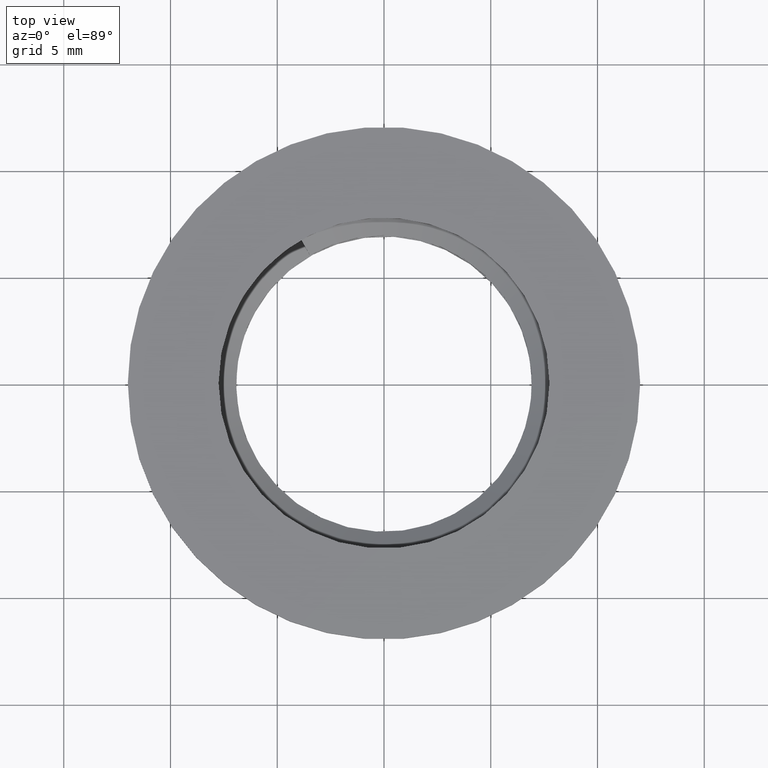
[diagram: clean part render]
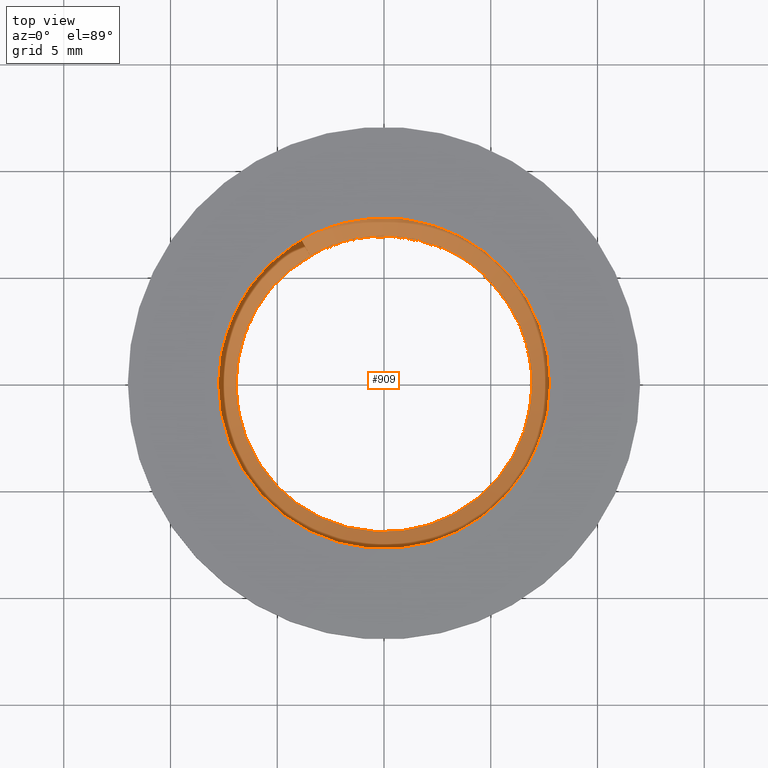
[diagram: same view with one face highlighted and labeled with its STEP entity id]
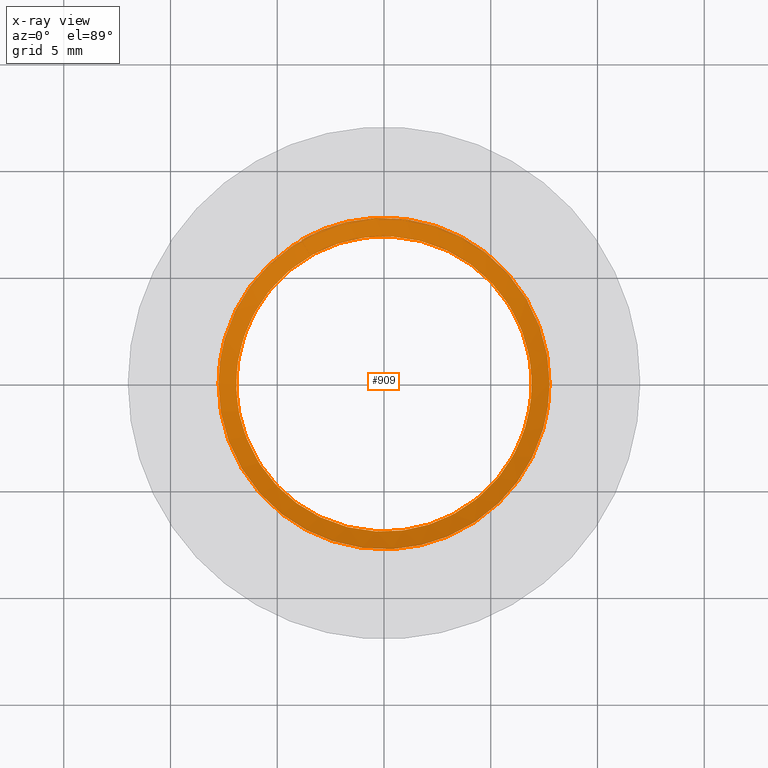
[diagram: x-ray of the same camera — body ghosted, the highlighted face saturated]
A machine part, top view. The second image highlights one B-rep face of the part: STEP entity #909.
The next image is the same camera in x-ray: the body ghosted, the highlighted face saturated — about 0% of this face is hidden behind the body in this view.
In plain terms, the highlighted face is a freeform B-spline surface patch.
Its self-contained STEP definition (entity closure, byte-faithful):
#1 = CARTESIAN_POINT ( 'NONE',  ( -3.213518103385607700, 7.758118988125000100, 1.785937495882736800 ) ) ;
#2 = CARTESIAN_POINT ( 'NONE',  ( -7.758118988125000100, 3.213518103385609100, 1.973437495882736500 ) ) ;
#3 = CARTESIAN_POINT ( 'NONE',  ( -5.485818545755305900, -5.485818545755304100, 2.254687495882736300 ) ) ;
#4 = CARTESIAN_POINT ( 'NONE',  ( 7.758118988125000100, 3.213518103385608200, 1.410937495882736500 ) ) ;
#5 = CARTESIAN_POINT ( 'NONE',  ( 7.758118988125000100, 0.0000000000000000000, 2.817187495882736800 ) ) ;
#6 = CARTESIAN_POINT ( 'NONE',  ( 7.758118988125000100, 3.213518103385608200, 2.910937495882737200 ) ) ;
#7 = CARTESIAN_POINT ( 'NONE',  ( -1.425143337931737600E-015, -7.758118988125000100, 2.442187495882736300 ) ) ;
#8 = CARTESIAN_POINT ( 'NONE',  ( 5.485818545755303300, -5.485818545755305900, 2.629687495882736800 ) ) ;
#9 = CARTESIAN_POINT ( 'NONE',  ( -3.213518103385607700, 7.758118988125000100, 3.285937495882736800 ) ) ;
#10 = CARTESIAN_POINT ( 'NONE',  ( 5.485818545755305000, 5.485818545755305000, 1.504687495882736100 ) ) ;
#11 = CARTESIAN_POINT ( 'NONE',  ( -5.485818545755304100, 5.485818545755305000, 1.879687495882736300 ) ) ;
#12 = CARTESIAN_POINT ( 'NONE',  ( -3.213518103385612600, -7.758118988124998300, 2.348437495882735900 ) ) ;
#13 = CARTESIAN_POINT ( 'NONE',  ( -7.758118988125001000, -3.213518103385606800, 2.160937495882736300 ) ) ;
#14 = CARTESIAN_POINT ( 'NONE',  ( 4.750477793105792600E-016, 7.758118988125000100, 1.692187495882736300 ) ) ;
#15 = CARTESIAN_POINT ( 'NONE',  ( 7.758118988124998300, -3.213518103385613500, 2.723437495882736800 ) ) ;
#16 = CARTESIAN_POINT ( 'NONE',  ( 3.213518103385608600, 7.758118988125000100, 3.098437495882736800 ) ) ;
#17 = CARTESIAN_POINT ( 'NONE',  ( 3.213518103385608600, 7.758118988125000100, 1.598437495882736500 ) ) ;
#18 = CARTESIAN_POINT ( 'NONE',  ( 5.485818545755305000, 5.485818545755305000, 3.004687495882736800 ) ) ;
#19 = CARTESIAN_POINT ( 'NONE',  ( -5.485818545755304100, 5.485818545755305000, 3.379687495882736800 ) ) ;
#20 = CARTESIAN_POINT ( 'NONE',  ( -7.758118988125000100, 9.500955586211585100E-016, 2.067187495882736800 ) ) ;
#21 = CARTESIAN_POINT ( 'NONE',  ( 3.213518103385610400, -7.758118988124999200, 2.535937495882736800 ) ) ;
#22 = CARTESIAN_POINT ( 'NONE',  ( 4.750477793105792600E-016, 7.758118988125000100, 3.192187495882737200 ) ) ;
#23 = CARTESIAN_POINT ( 'NONE',  ( 7.750000000000000000, 0.0000000000000000000, 1.312499995903220400 ) ) ;
#24 = CARTESIAN_POINT ( 'NONE',  ( 3.213518103385610400, -7.758118988124999200, 4.035937495882736300 ) ) ;
#25 = CARTESIAN_POINT ( 'NONE',  ( -5.485818545755305900, -5.485818545755304100, 3.754687495882736800 ) ) ;
#26 = CARTESIAN_POINT ( 'NONE',  ( -7.758118988125000100, 3.213518103385609100, 3.473437495882736300 ) ) ;
#27 = CARTESIAN_POINT ( 'NONE',  ( -7.758118988125001000, -3.213518103385606800, 3.660937495882736800 ) ) ;
#28 = CARTESIAN_POINT ( 'NONE',  ( -3.213518103385612600, -7.758118988124998300, 3.848437495882736300 ) ) ;
#29 = CARTESIAN_POINT ( 'NONE',  ( -1.425143337931737600E-015, -7.758118988125000100, 3.942187495882736800 ) ) ;
#30 = CARTESIAN_POINT ( 'NONE',  ( 5.485818545755303300, -5.485818545755305900, 4.129687495882735400 ) ) ;
#31 = CARTESIAN_POINT ( 'NONE',  ( 7.758118988124998300, -3.213518103385613500, 4.223437495882736300 ) ) ;
#32 = CARTESIAN_POINT ( 'NONE',  ( 7.758118988125000100, 0.0000000000000000000, 4.317187495882736300 ) ) ;
#33 = CARTESIAN_POINT ( 'NONE',  ( 7.758118988125000100, 3.213518103385608200, 4.410937495882736300 ) ) ;
#34 = CARTESIAN_POINT ( 'NONE',  ( 3.213518103385608600, 7.758118988125000100, 4.598437495882735400 ) ) ;
#35 = CARTESIAN_POINT ( 'NONE',  ( 4.750477793105792600E-016, 7.758118988125000100, 4.692187495882736300 ) ) ;
#36 = CARTESIAN_POINT ( 'NONE',  ( -7.758118988125000100, 9.500955586211585100E-016, 3.567187495882736800 ) ) ;
#37 = CARTESIAN_POINT ( 'NONE',  ( -2.078772564766396600, 7.758118988125000100, 4.752832845209235700 ) ) ;
#38 = CARTESIAN_POINT ( 'NONE',  ( -3.879044702752027600, 6.718736669044046600, 4.817913340302648200 ) ) ;
#39 = CARTESIAN_POINT ( 'NONE',  ( -4.375797104038879200, 6.431937994574597400, 4.835871120980606900 ) ) ;
#40 = CARTESIAN_POINT ( 'NONE',  ( 5.485818545755305000, 5.485818545755305000, 4.504687495882736300 ) ) ;
#41 = CARTESIAN_POINT ( 'NONE',  ( -4.872549505325728200, 6.145139320105148100, 4.853828901658568300 ) ) ;
#42 = CARTESIAN_POINT ( 'NONE',  ( 3.210155108391488500, -7.749999999999999100, 2.531249995903221100 ) ) ;
#43 = CARTESIAN_POINT ( 'NONE',  ( -5.480077554195744900, -5.480077554195743200, 2.249999995903220200 ) ) ;
#44 = CARTESIAN_POINT ( 'NONE',  ( 5.480077554195742300, -5.480077554195744900, 2.624999995903220200 ) ) ;
#45 = CARTESIAN_POINT ( 'NONE',  ( 4.745506346695993900E-016, 7.750000000000000000, 1.687499995903220200 ) ) ;
#46 = CARTESIAN_POINT ( 'NONE',  ( 7.749999999999998200, -3.210155108391492500, 2.718749995903220200 ) ) ;
#47 = CARTESIAN_POINT ( 'NONE',  ( 7.750000000000000000, 0.0000000000000000000, 2.812499995903220600 ) ) ;
#48 = CARTESIAN_POINT ( 'NONE',  ( 5.480077554195744000, 5.480077554195744000, 2.999999995903220200 ) ) ;
#49 = CARTESIAN_POINT ( 'NONE',  ( 3.210155108391487200, 7.750000000000000000, 1.593749995903220200 ) ) ;
#50 = CARTESIAN_POINT ( 'NONE',  ( -7.750000000000000000, 3.210155108391487700, 1.968749995903220200 ) ) ;
#51 = CARTESIAN_POINT ( 'NONE',  ( -7.750000000000000000, 9.491012693391987800E-016, 2.062499995903220200 ) ) ;
#52 = CARTESIAN_POINT ( 'NONE',  ( 3.210155108391487200, 7.750000000000000000, 3.093749995903220200 ) ) ;
#53 = CARTESIAN_POINT ( 'NONE',  ( 4.745506346695993900E-016, 7.750000000000000000, 3.187499995903221100 ) ) ;
#54 = CARTESIAN_POINT ( 'NONE',  ( -3.210155108391491200, -7.749999999999998200, 2.343749995903220200 ) ) ;
#55 = CARTESIAN_POINT ( 'NONE',  ( -3.210155108391486300, 7.750000000000000000, 3.281249995903220600 ) ) ;
#56 = CARTESIAN_POINT ( 'NONE',  ( 7.750000000000000000, 3.210155108391486800, 1.406249995903220200 ) ) ;
#57 = CARTESIAN_POINT ( 'NONE',  ( -7.750000000000001800, -3.210155108391485400, 2.156249995903220600 ) ) ;
#58 = CARTESIAN_POINT ( 'NONE',  ( 7.750000000000000000, 3.210155108391486800, 2.906249995903220600 ) ) ;
#59 = CARTESIAN_POINT ( 'NONE',  ( -5.480077554195743200, 5.480077554195744000, 3.374999995903220600 ) ) ;
#60 = CARTESIAN_POINT ( 'NONE',  ( -3.210155108391486300, 7.750000000000000000, 1.781249995903220600 ) ) ;
#61 = CARTESIAN_POINT ( 'NONE',  ( -1.423651904008798100E-015, -7.750000000000000000, 2.437499995903220200 ) ) ;
#62 = CARTESIAN_POINT ( 'NONE',  ( 5.480077554195744000, 5.480077554195744000, 1.499999995903220000 ) ) ;
#63 = CARTESIAN_POINT ( 'NONE',  ( -5.480077554195743200, 5.480077554195744000, 1.874999995903220200 ) ) ;
#64 = CARTESIAN_POINT ( 'NONE',  ( -7.750000000000000000, 3.210155108391487700, 3.468749995903220200 ) ) ;
#65 = CARTESIAN_POINT ( 'NONE',  ( -7.750000000000000000, 9.491012693391987800E-016, 3.562499995903220200 ) ) ;
#66 = CARTESIAN_POINT ( 'NONE',  ( -7.750000000000001800, -3.210155108391485400, 3.656249995903220200 ) ) ;
#67 = CARTESIAN_POINT ( 'NONE',  ( -5.480077554195744900, -5.480077554195743200, 3.749999995903220600 ) ) ;
#68 = CARTESIAN_POINT ( 'NONE',  ( -1.423651904008798100E-015, -7.750000000000000000, 3.937499995903220600 ) ) ;
#69 = CARTESIAN_POINT ( 'NONE',  ( -3.210155108391491200, -7.749999999999998200, 3.843749995903220600 ) ) ;
#70 = CARTESIAN_POINT ( 'NONE',  ( 5.480077554195742300, -5.480077554195744900, 4.124999995903220200 ) ) ;
#71 = CARTESIAN_POINT ( 'NONE',  ( 7.749999999999998200, -3.210155108391492500, 4.218749995903220200 ) ) ;
#72 = CARTESIAN_POINT ( 'NONE',  ( 3.210155108391488500, -7.749999999999999100, 4.031249995903221100 ) ) ;
#73 = CARTESIAN_POINT ( 'NONE',  ( 7.750000000000000000, 0.0000000000000000000, 4.312499995903220200 ) ) ;
#74 = CARTESIAN_POINT ( 'NONE',  ( 7.750000000000000000, 3.210155108391486800, 4.406249995903220200 ) ) ;
#75 = CARTESIAN_POINT ( 'NONE',  ( -6.938101187500000000, 8.496723411432327400E-016, 1.593749997951610500 ) ) ;
#76 = CARTESIAN_POINT ( 'NONE',  ( -3.874985224168856900, 6.711705410137799500, 4.813225840323131200 ) ) ;
#77 = CARTESIAN_POINT ( 'NONE',  ( 5.480077554195744000, 5.480077554195744000, 4.499999995903220200 ) ) ;
#78 = CARTESIAN_POINT ( 'NONE',  ( -2.076597098033578200, 7.749999999999999100, 4.748145345229719500 ) ) ;
#79 = CARTESIAN_POINT ( 'NONE',  ( 6.938101187500000000, 0.0000000000000000000, 0.8437499979516101000 ) ) ;
#80 = CARTESIAN_POINT ( 'NONE',  ( 6.938101187500000900, 2.873855608979377000, 0.9374999979516103200 ) ) ;
#81 = CARTESIAN_POINT ( 'NONE',  ( -2.873855608979377000, 6.938101187500000900, 1.312499997951610100 ) ) ;
#82 = CARTESIAN_POINT ( 'NONE',  ( -6.938101187500000900, 2.873855608979377000, 1.499999997951610800 ) ) ;
#83 = CARTESIAN_POINT ( 'NONE',  ( -6.938101187500000900, -2.873855608979375200, 1.687499997951610100 ) ) ;
#84 = CARTESIAN_POINT ( 'NONE',  ( 4.745506346695993900E-016, 7.750000000000000000, 4.687499995903220200 ) ) ;
#85 = CARTESIAN_POINT ( 'NONE',  ( -4.371217766601611200, 6.425206874791745000, 4.831183621001091700 ) ) ;
#86 = CARTESIAN_POINT ( 'NONE',  ( 3.210155108391487200, 7.750000000000000000, 4.593749995903220200 ) ) ;
#87 = CARTESIAN_POINT ( 'NONE',  ( 4.905978398239688500, 4.905978398239688500, 1.031249997951610100 ) ) ;
#88 = CARTESIAN_POINT ( 'NONE',  ( 2.873855608979377000, 6.938101187500000900, 1.124999997951610100 ) ) ;
#89 = CARTESIAN_POINT ( 'NONE',  ( 4.248361705716163700E-016, 6.938101187500000000, 1.218749997951610100 ) ) ;
#90 = CARTESIAN_POINT ( 'NONE',  ( -4.867450309034365000, 6.138708339445691400, 4.849141401679053100 ) ) ;
#91 = CARTESIAN_POINT ( 'NONE',  ( -4.905978398239687600, 4.905978398239688500, 1.406249997951610300 ) ) ;
#105 = CARTESIAN_POINT ( 'NONE',  ( -3.874981298774169000, 6.711707710953602300, 4.813225714980119600 ) ) ;
#110 = CARTESIAN_POINT ( 'NONE',  ( -3.469033611689959600, 6.008581686953165000, 4.344475900163416800 ) ) ;
#120 = CARTESIAN_POINT ( 'NONE',  ( 6.938101187500000000, 0.0000000000000000000, 0.8437499979516101000 ) ) ;
#123 = CARTESIAN_POINT ( 'NONE',  ( 6.938101187500000900, 2.873855608979377000, 0.9374999979516102100 ) ) ;
#124 = CARTESIAN_POINT ( 'NONE',  ( 4.905978398239688500, 4.905978398239688500, 1.031249997951609900 ) ) ;
#127 = CARTESIAN_POINT ( 'NONE',  ( -6.938101187500000000, 8.496723411432327400E-016, 1.593749997951610300 ) ) ;
#128 = CARTESIAN_POINT ( 'NONE',  ( -4.905978398239687600, 4.905978398239688500, 2.906249997951610500 ) ) ;
#129 = CARTESIAN_POINT ( 'NONE',  ( -6.938101187500000900, 2.873855608979377000, 2.999999997951610100 ) ) ;
#130 = CARTESIAN_POINT ( 'NONE',  ( 4.248361705716163700E-016, 6.938101187500000000, 1.218749997951610100 ) ) ;
#131 = CARTESIAN_POINT ( 'NONE',  ( -2.873855608979377000, 6.938101187500000900, 1.312499997951610100 ) ) ;
#132 = CARTESIAN_POINT ( 'NONE',  ( 6.938101187500000000, 0.0000000000000000000, 2.343749997951610100 ) ) ;
#133 = CARTESIAN_POINT ( 'NONE',  ( 4.248361705716163700E-016, 6.938101187500000000, 2.718749997951610500 ) ) ;
#134 = CARTESIAN_POINT ( 'NONE',  ( -6.938101187500000000, 8.496723411432327400E-016, 3.093749997951610100 ) ) ;
#135 = CARTESIAN_POINT ( 'NONE',  ( 4.905978398239686700, -4.905978398239689400, 2.156249997951610100 ) ) ;
#136 = CARTESIAN_POINT ( 'NONE',  ( -6.938101187500000900, -2.873855608979375200, 1.687499997951610100 ) ) ;
#137 = CARTESIAN_POINT ( 'NONE',  ( -2.873855608979380100, -6.938101187499998300, 1.874999997951610300 ) ) ;
#138 = CARTESIAN_POINT ( 'NONE',  ( 6.938101187499998300, -2.873855608979381000, 2.249999997951610100 ) ) ;
#139 = CARTESIAN_POINT ( 'NONE',  ( -2.873855608979377000, 6.938101187500000900, 2.812499997951610500 ) ) ;
#140 = CARTESIAN_POINT ( 'NONE',  ( -1.274508511714848900E-015, -6.938101187500000000, 1.968749997951609900 ) ) ;
#141 = CARTESIAN_POINT ( 'NONE',  ( -6.938101187500000900, -2.873855608979375200, 3.187499997951610100 ) ) ;
#142 = CARTESIAN_POINT ( 'NONE',  ( 2.873855608979377000, 6.938101187500000900, 1.124999997951610100 ) ) ;
#143 = CARTESIAN_POINT ( 'NONE',  ( -4.905978398239689400, -4.905978398239687600, 1.781249997951610100 ) ) ;
#144 = CARTESIAN_POINT ( 'NONE',  ( 6.938101187500000900, 2.873855608979377000, 2.437499997951610500 ) ) ;
#145 = CARTESIAN_POINT ( 'NONE',  ( 4.905978398239688500, 4.905978398239688500, 2.531249997951610500 ) ) ;
#146 = CARTESIAN_POINT ( 'NONE',  ( -4.905978398239687600, 4.905978398239688500, 1.406249997951610100 ) ) ;
#147 = CARTESIAN_POINT ( 'NONE',  ( 2.873855608979377000, 6.938101187500000900, 2.624999997951611400 ) ) ;
#148 = CARTESIAN_POINT ( 'NONE',  ( -4.905978398239689400, -4.905978398239687600, 3.281249997951610100 ) ) ;
#149 = CARTESIAN_POINT ( 'NONE',  ( 2.873855608979377900, -6.938101187500000900, 2.062499997951609700 ) ) ;
#150 = CARTESIAN_POINT ( 'NONE',  ( -6.938101187500000900, 2.873855608979377000, 1.499999997951610100 ) ) ;
#151 = CARTESIAN_POINT ( 'NONE',  ( -2.873855608979380100, -6.938101187499998300, 3.374999997951610100 ) ) ;
#152 = CARTESIAN_POINT ( 'NONE',  ( -1.274508511714848900E-015, -6.938101187500000000, 3.468749997951611000 ) ) ;
#157 = CARTESIAN_POINT ( 'NONE',  ( 2.873855608979377900, -6.938101187500000900, 3.562499997951611000 ) ) ;
#158 = CARTESIAN_POINT ( 'NONE',  ( 6.938101187500000900, 2.873855608979377000, 3.937499997951611000 ) ) ;
#163 = CARTESIAN_POINT ( 'NONE',  ( 6.938101187499998300, -2.873855608979381000, 3.749999997951610500 ) ) ;
#165 = CARTESIAN_POINT ( 'NONE',  ( 4.905978398239688500, 4.905978398239688500, 4.031249997951611000 ) ) ;
#166 = CARTESIAN_POINT ( 'NONE',  ( -3.469033611689959600, 6.008581686953165000, 4.344475900163416800 ) ) ;
#167 = CARTESIAN_POINT ( 'NONE',  ( 2.873855608979377000, 6.938101187500000900, 4.124999997951611000 ) ) ;
#171 = CARTESIAN_POINT ( 'NONE',  ( 6.938101187500000000, 0.0000000000000000000, 3.843749997951610500 ) ) ;
#175 = CARTESIAN_POINT ( 'NONE',  ( -1.859048105600379600, 6.938101187500002700, 4.279395271623494400 ) ) ;
#176 = CARTESIAN_POINT ( 'NONE',  ( 4.905978398239686700, -4.905978398239689400, 3.656249997951610500 ) ) ;
#177 = CARTESIAN_POINT ( 'NONE',  ( 4.248361705716163700E-016, 6.938101187500000000, 4.218749997951610100 ) ) ;
#181 = CARTESIAN_POINT ( 'NONE',  ( -4.905978398239689400, -4.905978398239687600, 1.781249997951610100 ) ) ;
#198 = FACE_OUTER_BOUND ( 'NONE', #547, .T. ) ;
#203 = CARTESIAN_POINT ( 'NONE',  ( 7.758118988125000100, 0.0000000000000000000, 1.317187495882736300 ) ) ;
#206 =( BOUNDED_CURVE ( )  B_SPLINE_CURVE ( 2, ( #807, #809, #798, #808, #800, #802, #805, #803, #804 ),
 .UNSPECIFIED., .F., .T. ) 
 B_SPLINE_CURVE_WITH_KNOTS ( ( 3, 2, 2, 2, 3 ),
 ( -0.04873644954266535800, -0.04264437139082739900, -0.03655229323898944600, -0.03046021508715149000, -0.02436813693531354000 ),
 .UNSPECIFIED. ) 
 CURVE ( )  GEOMETRIC_REPRESENTATION_ITEM ( )  RATIONAL_B_SPLINE_CURVE ( ( 0.9999999999999709100, 0.9238795325113159400, 1.000000000000000000, 0.9238795325112868500, 1.000000000000000000, 0.9238795325112868500, 1.000000000000000000, 0.9238795325112868500, 1.000000000000000000 ) ) 
 REPRESENTATION_ITEM ( '' )  );
#207 =( BOUNDED_CURVE ( )  B_SPLINE_CURVE ( 2, ( #755, #762, #759, #764, #763, #765, #767, #768, #782 ),
 .UNSPECIFIED., .F., .F. ) 
 B_SPLINE_CURVE_WITH_KNOTS ( ( 3, 2, 2, 2, 3 ),
 ( -0.07310475217996262300, -0.06701267652063830300, -0.06092060086131399100, -0.05482852520198967800, -0.04873644954266535800 ),
 .UNSPECIFIED. ) 
 CURVE ( )  GEOMETRIC_REPRESENTATION_ITEM ( )  RATIONAL_B_SPLINE_CURVE ( ( 0.9999999999999998900, 0.9238795325112866300, 0.9999999999999998900, 0.9238795325112866300, 0.9999999999999998900, 0.9238795325112866300, 0.9999999999999998900, 0.9238795325112575400, 1.000000000000028900 ) ) 
 REPRESENTATION_ITEM ( '' )  );
#209 =( BOUNDED_CURVE ( )  B_SPLINE_CURVE ( 2, ( #441, #459, #447, #471, #443, #434, #444, #436, #430 ),
 .UNSPECIFIED., .F., .T. ) 
 B_SPLINE_CURVE_WITH_KNOTS ( ( 3, 2, 2, 2, 3 ),
 ( -2.753873518113181300E-016, 0.006092036653519214800, 0.01218407330703872100, 0.01827610996055821200, 0.02436814661407770600 ),
 .UNSPECIFIED. ) 
 CURVE ( )  GEOMETRIC_REPRESENTATION_ITEM ( )  RATIONAL_B_SPLINE_CURVE ( ( 1.000000000000000000, 0.9238795325112866300, 1.000000000000000000, 0.9238795325112866300, 1.000000000000000000, 0.9238795325112866300, 1.000000000000000000, 0.9238795325112915100, 0.9999999999999951200 ) ) 
 REPRESENTATION_ITEM ( '' )  );
#211 =( BOUNDED_CURVE ( )  B_SPLINE_CURVE ( 2, ( #801, #238, #230, #233, #229, #257, #239, #235, #252 ),
 .UNSPECIFIED., .F., .T. ) 
 B_SPLINE_CURVE_WITH_KNOTS ( ( 3, 2, 2, 2, 3 ),
 ( -0.02436813693531354000, -0.01827610270148522300, -0.01218406846765690400, -0.006092034233828591500, -2.706168622523819100E-016 ),
 .UNSPECIFIED. ) 
 CURVE ( )  GEOMETRIC_REPRESENTATION_ITEM ( )  RATIONAL_B_SPLINE_CURVE ( ( 1.000000000000000000, 0.9238795325112867400, 1.000000000000000000, 0.9238795325112867400, 1.000000000000000000, 0.9238795325112867400, 1.000000000000000000, 0.9238795325112867400, 1.000000000000000000 ) ) 
 REPRESENTATION_ITEM ( '' )  );
#212 =( BOUNDED_CURVE ( )  B_SPLINE_CURVE ( 2, ( #271, #268, #281, #272, #263, #261, #264 ),
 .UNSPECIFIED., .F., .T. ) 
 B_SPLINE_CURVE_WITH_KNOTS ( ( 3, 2, 2, 3 ),
 ( 0.02436814661407770200, 0.03046266844806458400, 0.03655719028205145500, 0.04060853037594864400 ),
 .UNSPECIFIED. ) 
 CURVE ( )  GEOMETRIC_REPRESENTATION_ITEM ( )  RATIONAL_B_SPLINE_CURVE ( ( 1.000000000000004900, 0.9238795325112819600, 1.000000000000000000, 0.9238795325112868500, 1.000000000000000000, 0.9493987791205188400, 0.9660720676855232300 ) ) 
 REPRESENTATION_ITEM ( '' )  );
#219 =( BOUNDED_CURVE ( )  B_SPLINE_CURVE ( 1, ( #110, #105 ),
 .UNSPECIFIED., .F., .T. ) 
 B_SPLINE_CURVE_WITH_KNOTS ( ( 2, 2 ),
 ( 0.0000000000000000000, 0.0009374998117181645300 ),
 .UNSPECIFIED. ) 
 CURVE ( )  GEOMETRIC_REPRESENTATION_ITEM ( )  RATIONAL_B_SPLINE_CURVE ( ( 0.9660720227111043700, 0.9660720227111043700 ) ) 
 REPRESENTATION_ITEM ( '' )  );
#221 =( BOUNDED_SURFACE ( )  B_SPLINE_SURFACE ( 1, 2, ( 
 ( #203, #4, #10, #17, #14, #1, #11, #2, #20, #13, #3, #12, #7, #21, #8, #15, #5, #6, #18, #16, #22, #9, #19, #26, #36, #27, #25, #28, #29, #24, #30, #31, #32, #33, #40, #34, #35, #37, #38, #39, #41 ),
 ( #23, #56, #62, #49, #45, #60, #63, #50, #51, #57, #43, #54, #61, #42, #44, #46, #47, #58, #48, #52, #53, #55, #59, #64, #65, #66, #67, #69, #68, #72, #70, #71, #73, #74, #77, #86, #84, #78, #76, #85, #90 ),
 ( #79, #80, #87, #88, #89, #81, #91, #82, #75, #83, #181, #1227, #1224, #1225, #1226, #1228, #1229, #1230, #1235, #1233, #1231, #1232, #1234, #1236, #1241, #1242, #1237, #1238, #1239, #1240, #1148, #1142, #1143, #1147, #1144, #1145, #1146, #1155, #1150, #1151, #1156 ) ),
 .UNSPECIFIED., .F., .F., .F. ) 
 B_SPLINE_SURFACE_WITH_KNOTS ( ( 2, 1, 2 ),
 ( 3, 2, 2, 2, 2, 2, 2, 2, 2, 2, 2, 2, 2, 2, 2, 2, 2, 2, 2, 2, 3 ),
 ( -0.01000000000000000000, 0.0000000000000000000, 1.000000000000000000 ),
 ( 0.0000000000000000000, 0.04166666666666666400, 0.08333333333333332900, 0.1250000000000000000, 0.1666666666666666600, 0.2083333333333333400, 0.2500000000000000000, 0.2916666666666666900, 0.3333333333333333100, 0.3750000000000000000, 0.4166666666666666900, 0.4583333333333333100, 0.5000000000000000000, 0.5416666666666666300, 0.5833333333333333700, 0.6250000000000000000, 0.6666666666666666300, 0.7083333333333333700, 0.7500000000000000000, 0.7776979933632742800, 0.7854749732969069600 ),
 .UNSPECIFIED. ) 
 GEOMETRIC_REPRESENTATION_ITEM ( )  RATIONAL_B_SPLINE_SURFACE ( (
 ( 1.000000000000000000, 0.9238795325112867400, 1.000000000000000000, 0.9238795325112867400, 1.000000000000000000, 0.9238795325112867400, 1.000000000000000000, 0.9238795325112867400, 1.000000000000000000, 0.9238795325112867400, 1.000000000000000000, 0.9238795325112867400, 1.000000000000000000, 0.9238795325112867400, 1.000000000000000000, 0.9238795325112867400, 1.000000000000000000, 0.9238795325112867400, 1.000000000000000000, 0.9238795325112867400, 1.000000000000000000, 0.9238795325112867400, 1.000000000000000000, 0.9238795325112867400, 1.000000000000000000, 0.9238795325112867400, 1.000000000000000000, 0.9238795325112867400, 1.000000000000000000, 0.9238795325112867400, 1.000000000000000000, 0.9238795325112867400, 1.000000000000000000, 0.9238795325112867400, 1.000000000000000000, 0.9238795325112867400, 1.000000000000000000, 0.9493987791205188400, 0.9660720676855232300, 0.9660720676855232300, 0.9660720676855232300),
 ( 1.000000000000000000, 0.9238795325112867400, 1.000000000000000000, 0.9238795325112867400, 1.000000000000000000, 0.9238795325112867400, 1.000000000000000000, 0.9238795325112867400, 1.000000000000000000, 0.9238795325112867400, 1.000000000000000000, 0.9238795325112867400, 1.000000000000000000, 0.9238795325112867400, 1.000000000000000000, 0.9238795325112867400, 1.000000000000000000, 0.9238795325112867400, 1.000000000000000000, 0.9238795325112867400, 1.000000000000000000, 0.9238795325112867400, 1.000000000000000000, 0.9238795325112867400, 1.000000000000000000, 0.9238795325112867400, 1.000000000000000000, 0.9238795325112867400, 1.000000000000000000, 0.9238795325112867400, 1.000000000000000000, 0.9238795325112867400, 1.000000000000000000, 0.9238795325112867400, 1.000000000000000000, 0.9238795325112867400, 1.000000000000000000, 0.9493987791205188400, 0.9660720676855232300, 0.9660720676855232300, 0.9660720676855232300),
 ( 1.000000000000000000, 0.9238795325112867400, 1.000000000000000000, 0.9238795325112867400, 1.000000000000000000, 0.9238795325112867400, 1.000000000000000000, 0.9238795325112867400, 1.000000000000000000, 0.9238795325112867400, 1.000000000000000000, 0.9238795325112867400, 1.000000000000000000, 0.9238795325112867400, 1.000000000000000000, 0.9238795325112867400, 1.000000000000000000, 0.9238795325112867400, 1.000000000000000000, 0.9238795325112867400, 1.000000000000000000, 0.9238795325112867400, 1.000000000000000000, 0.9238795325112867400, 1.000000000000000000, 0.9238795325112867400, 1.000000000000000000, 0.9238795325112867400, 1.000000000000000000, 0.9238795325112867400, 1.000000000000000000, 0.9238795325112867400, 1.000000000000000000, 0.9238795325112867400, 1.000000000000000000, 0.9238795325112867400, 1.000000000000000000, 0.9493987791205188400, 0.9660720676855232300, 0.9660720676855232300, 0.9660720676855232300) ) ) 
 REPRESENTATION_ITEM ( '' )  SURFACE ( )  );
#223 =( BOUNDED_CURVE ( )  B_SPLINE_CURVE ( 2, ( #120, #123, #124, #142, #130, #131, #146, #150, #127, #136, #143, #137, #140, #149, #135, #138, #132, #144, #145, #147, #133, #139, #128, #129, #134, #141, #148, #151, #152, #157, #176, #163, #171, #158, #165, #167, #177, #175, #166 ),
 .UNSPECIFIED., .F., .T. ) 
 B_SPLINE_CURVE_WITH_KNOTS ( ( 3, 2, 2, 2, 2, 2, 2, 2, 2, 2, 2, 2, 2, 2, 2, 2, 2, 2, 2, 3 ),
 ( 0.0000000000000000000, 0.04166666666666665700, 0.08333333333333331500, 0.1250000000000000000, 0.1666666666666666300, 0.2083333333333333700, 0.2500000000000000000, 0.2916666666666666900, 0.3333333333333332600, 0.3750000000000000000, 0.4166666666666667400, 0.4583333333333332600, 0.5000000000000000000, 0.5416666666666666300, 0.5833333333333333700, 0.6250000000000000000, 0.6666666666666665200, 0.7083333333333334800, 0.7500000000000000000, 0.7776979605586609200 ),
 .UNSPECIFIED. ) 
 CURVE ( )  GEOMETRIC_REPRESENTATION_ITEM ( )  RATIONAL_B_SPLINE_CURVE ( ( 1.000000000000000000, 0.9238795325112867400, 1.000000000000000000, 0.9238795325112867400, 1.000000000000000000, 0.9238795325112867400, 1.000000000000000000, 0.9238795325112867400, 1.000000000000000000, 0.9238795325112867400, 1.000000000000000000, 0.9238795325112867400, 1.000000000000000000, 0.9238795325112867400, 1.000000000000000000, 0.9238795325112867400, 1.000000000000000000, 0.9238795325112867400, 1.000000000000000000, 0.9238795325112867400, 1.000000000000000000, 0.9238795325112867400, 1.000000000000000000, 0.9238795325112867400, 1.000000000000000000, 0.9238795325112867400, 1.000000000000000000, 0.9238795325112867400, 1.000000000000000000, 0.9238795325112867400, 1.000000000000000000, 0.9238795325112867400, 1.000000000000000000, 0.9238795325112867400, 1.000000000000000000, 0.9238795325112867400, 1.000000000000000000, 0.9493988390509788800, 0.9660720281910029100 ) ) 
 REPRESENTATION_ITEM ( '' )  );
#229 = CARTESIAN_POINT ( 'NONE',  ( 4.745506346695992900E-016, 7.749999999999999100, 3.187499995903220600 ) ) ;
#230 = CARTESIAN_POINT ( 'NONE',  ( 5.480077554195743200, 5.480077554195743200, 2.999999995903219800 ) ) ;
#233 = CARTESIAN_POINT ( 'NONE',  ( 3.210155108391487200, 7.749999999999999100, 3.093749995903219800 ) ) ;
#235 = CARTESIAN_POINT ( 'NONE',  ( -7.749999999999999100, 3.210155108391487700, 3.468749995903219800 ) ) ;
#238 = CARTESIAN_POINT ( 'NONE',  ( 7.749999999999999100, 3.210155108391486800, 2.906249995903219800 ) ) ;
#239 = CARTESIAN_POINT ( 'NONE',  ( -5.480077554195742300, 5.480077554195743200, 3.374999995903219800 ) ) ;
#252 = CARTESIAN_POINT ( 'NONE',  ( -7.750000000000000000, 9.491012693391987800E-016, 3.562499995903220200 ) ) ;
#257 = CARTESIAN_POINT ( 'NONE',  ( -3.210155108391486300, 7.749999999999999100, 3.281249995903219800 ) ) ;
#261 = CARTESIAN_POINT ( 'NONE',  ( -2.076597098033577300, 7.750000000000000000, 4.748145345229720400 ) ) ;
#263 = CARTESIAN_POINT ( 'NONE',  ( 4.745506346695993900E-016, 7.749999999999999100, 4.687499995903220200 ) ) ;
#264 = CARTESIAN_POINT ( 'NONE',  ( -3.874981298774169000, 6.711707710953602300, 4.813225714980119600 ) ) ;
#268 = CARTESIAN_POINT ( 'NONE',  ( 7.750000000000156300, 3.210155108391328200, 4.406249995903211300 ) ) ;
#271 = CARTESIAN_POINT ( 'NONE',  ( 7.750000000000000000, 0.0000000000000000000, 4.312499995903220200 ) ) ;
#272 = CARTESIAN_POINT ( 'NONE',  ( 3.210155108391485900, 7.749999999999998200, 4.593749995903219300 ) ) ;
#281 = CARTESIAN_POINT ( 'NONE',  ( 5.480077554195744000, 5.480077554195744000, 4.499999995903220200 ) ) ;
#430 = CARTESIAN_POINT ( 'NONE',  ( 7.750000000000000000, 0.0000000000000000000, 4.312499995903220200 ) ) ;
#434 = CARTESIAN_POINT ( 'NONE',  ( 3.210155108391489000, -7.750000000000000900, 4.031249995903222000 ) ) ;
#436 = CARTESIAN_POINT ( 'NONE',  ( 7.749999999999843700, -3.210155108391650600, 4.218749995903214900 ) ) ;
#441 = CARTESIAN_POINT ( 'NONE',  ( -7.750000000000000000, 9.491012693391987800E-016, 3.562499995903220200 ) ) ;
#443 = CARTESIAN_POINT ( 'NONE',  ( -1.423651904008798300E-015, -7.750000000000001800, 3.937499995903221500 ) ) ;
#444 = CARTESIAN_POINT ( 'NONE',  ( 5.480077554195743200, -5.480077554195745800, 4.124999995903222000 ) ) ;
#447 = CARTESIAN_POINT ( 'NONE',  ( -5.480077554195745800, -5.480077554195744000, 3.749999995903221500 ) ) ;
#459 = CARTESIAN_POINT ( 'NONE',  ( -7.750000000000003600, -3.210155108391485900, 3.656249995903221100 ) ) ;
#471 = CARTESIAN_POINT ( 'NONE',  ( -3.210155108391491700, -7.750000000000000000, 3.843749995903221500 ) ) ;
#501 = VERTEX_POINT ( 'NONE', #689 ) ;
#516 = VERTEX_POINT ( 'NONE', #725 ) ;
#523 = VERTEX_POINT ( 'NONE', #736 ) ;
#524 = VERTEX_POINT ( 'NONE', #732 ) ;
#529 = VERTEX_POINT ( 'NONE', #737 ) ;
#534 = VERTEX_POINT ( 'NONE', #743 ) ;
#537 = VERTEX_POINT ( 'NONE', #746 ) ;
#545 = VERTEX_POINT ( 'NONE', #748 ) ;
#547 = EDGE_LOOP ( 'NONE', ( #593, #600, #576, #619, #610, #632, #582, #595 ) ) ;
#576 = ORIENTED_EDGE ( 'NONE', *, *, #820, .T. ) ;
#582 = ORIENTED_EDGE ( 'NONE', *, *, #894, .F. ) ;
#593 = ORIENTED_EDGE ( 'NONE', *, *, #890, .F. ) ;
#595 = ORIENTED_EDGE ( 'NONE', *, *, #899, .F. ) ;
#600 = ORIENTED_EDGE ( 'NONE', *, *, #811, .T. ) ;
#610 = ORIENTED_EDGE ( 'NONE', *, *, #868, .T. ) ;
#619 = ORIENTED_EDGE ( 'NONE', *, *, #821, .T. ) ;
#632 = ORIENTED_EDGE ( 'NONE', *, *, #832, .T. ) ;
#689 = CARTESIAN_POINT ( 'NONE',  ( 6.938101187500000000, 0.0000000000000000000, 0.8437499979516101000 ) ) ;
#725 = CARTESIAN_POINT ( 'NONE',  ( -3.469033611689959600, 6.008581686953165000, 4.344475900163416800 ) ) ;
#732 = CARTESIAN_POINT ( 'NONE',  ( -3.874981298774169000, 6.711707710953602300, 4.813225714980119600 ) ) ;
#736 = CARTESIAN_POINT ( 'NONE',  ( 7.750000000000000000, 0.0000000000000000000, 1.312499995903220400 ) ) ;
#737 = CARTESIAN_POINT ( 'NONE',  ( -7.750000000000000000, 9.491012693391987800E-016, 3.562499995903220200 ) ) ;
#743 = CARTESIAN_POINT ( 'NONE',  ( 7.750000000000000000, 0.0000000000000000000, 2.812499995903220600 ) ) ;
#746 = CARTESIAN_POINT ( 'NONE',  ( 7.750000000000000000, 0.0000000000000000000, 4.312499995903220200 ) ) ;
#748 = CARTESIAN_POINT ( 'NONE',  ( -7.750000000000000900, -1.254904125583425800E-013, 2.062499995903224200 ) ) ;
#755 = CARTESIAN_POINT ( 'NONE',  ( 7.750000000000000000, 0.0000000000000000000, 1.312499995903220400 ) ) ;
#759 = CARTESIAN_POINT ( 'NONE',  ( 5.480077554195744900, 5.480077554195744900, 1.499999995903220900 ) ) ;
#762 = CARTESIAN_POINT ( 'NONE',  ( 7.750000000000000000, 3.210155108391486800, 1.406249995903220400 ) ) ;
#763 = CARTESIAN_POINT ( 'NONE',  ( 4.745506346695995900E-016, 7.750000000000001800, 1.687499995903221100 ) ) ;
#764 = CARTESIAN_POINT ( 'NONE',  ( 3.210155108391487200, 7.750000000000000000, 1.593749995903221100 ) ) ;
#765 = CARTESIAN_POINT ( 'NONE',  ( -3.210155108391486800, 7.750000000000000000, 1.781249995903220900 ) ) ;
#767 = CARTESIAN_POINT ( 'NONE',  ( -5.480077554195744000, 5.480077554195744900, 1.874999995903221300 ) ) ;
#768 = CARTESIAN_POINT ( 'NONE',  ( -7.750000000000940600, 3.210155108390548400, 1.968749995903259700 ) ) ;
#782 = CARTESIAN_POINT ( 'NONE',  ( -7.750000000000000900, -1.254904125583425800E-013, 2.062499995903224200 ) ) ;
#798 = CARTESIAN_POINT ( 'NONE',  ( -5.480077554195739600, -5.480077554195737800, 2.249999995903215300 ) ) ;
#800 = CARTESIAN_POINT ( 'NONE',  ( -1.423651904008796500E-015, -7.749999999999992000, 2.437499995903215800 ) ) ;
#801 = CARTESIAN_POINT ( 'NONE',  ( 7.750000000000000000, 0.0000000000000000000, 2.812499995903220600 ) ) ;
#802 = CARTESIAN_POINT ( 'NONE',  ( 3.210155108391484500, -7.749999999999990200, 2.531249995903215300 ) ) ;
#803 = CARTESIAN_POINT ( 'NONE',  ( 7.749999999999989300, -3.210155108391488500, 2.718749995903215300 ) ) ;
#804 = CARTESIAN_POINT ( 'NONE',  ( 7.750000000000000000, 0.0000000000000000000, 2.812499995903220600 ) ) ;
#805 = CARTESIAN_POINT ( 'NONE',  ( 5.480077554195736900, -5.480077554195739600, 2.624999995903216200 ) ) ;
#807 = CARTESIAN_POINT ( 'NONE',  ( -7.750000000000000900, -1.254904125583425800E-013, 2.062499995903224200 ) ) ;
#808 = CARTESIAN_POINT ( 'NONE',  ( -3.210155108391487200, -7.749999999999989300, 2.343749995903214400 ) ) ;
#809 = CARTESIAN_POINT ( 'NONE',  ( -7.749999999999055000, -3.210155108392421600, 2.156249995903254800 ) ) ;
#811 = EDGE_CURVE ( 'NONE', #523, #545, #207, .T. ) ;
#820 = EDGE_CURVE ( 'NONE', #545, #534, #206, .T. ) ;
#821 = EDGE_CURVE ( 'NONE', #534, #529, #211, .T. ) ;
#832 = EDGE_CURVE ( 'NONE', #537, #524, #212, .T. ) ;
#868 = EDGE_CURVE ( 'NONE', #529, #537, #209, .T. ) ;
#890 = EDGE_CURVE ( 'NONE', #523, #501, #1089, .T. ) ;
#894 = EDGE_CURVE ( 'NONE', #516, #524, #219, .T. ) ;
#899 = EDGE_CURVE ( 'NONE', #501, #516, #223, .T. ) ;
#909 = ADVANCED_FACE ( 'NONE', ( #198 ), #221, .F. ) ;
#1089 = LINE ( 'NONE', #1090, #1261 ) ;
#1090 = CARTESIAN_POINT ( 'NONE',  ( 7.344050593750000500, 0.0000000000000000000, 1.078124996927415100 ) ) ;
#1091 = DIRECTION ( 'NONE',  ( -0.8660254037844397100, 0.0000000000000000000, -0.4999999999999983300 ) ) ;
#1142 = CARTESIAN_POINT ( 'NONE',  ( 6.938101187499998300, -2.873855608979381000, 3.749999997951610500 ) ) ;
#1143 = CARTESIAN_POINT ( 'NONE',  ( 6.938101187500000000, 0.0000000000000000000, 3.843749997951610500 ) ) ;
#1144 = CARTESIAN_POINT ( 'NONE',  ( 4.905978398239688500, 4.905978398239688500, 4.031249997951611000 ) ) ;
#1145 = CARTESIAN_POINT ( 'NONE',  ( 2.873855608979377000, 6.938101187500000900, 4.124999997951611000 ) ) ;
#1146 = CARTESIAN_POINT ( 'NONE',  ( 4.248361705716163700E-016, 6.938101187500000000, 4.218749997951610100 ) ) ;
#1147 = CARTESIAN_POINT ( 'NONE',  ( 6.938101187500000900, 2.873855608979377000, 3.937499997951611000 ) ) ;
#1148 = CARTESIAN_POINT ( 'NONE',  ( 4.905978398239686700, -4.905978398239689400, 3.656249997951610500 ) ) ;
#1150 = CARTESIAN_POINT ( 'NONE',  ( -3.469037365851729500, 6.008579519513190800, 4.344475842371519300 ) ) ;
#1151 = CARTESIAN_POINT ( 'NONE',  ( -3.913284022874804700, 5.752094896506549500, 4.362433623049478900 ) ) ;
#1155 = CARTESIAN_POINT ( 'NONE',  ( -1.859050424751718800, 6.938101187500000000, 4.279395347278109400 ) ) ;
#1156 = CARTESIAN_POINT ( 'NONE',  ( -4.357530679897879000, 5.495610273499906400, 4.380391403727441200 ) ) ;
#1224 = CARTESIAN_POINT ( 'NONE',  ( -1.274508511714848900E-015, -6.938101187500000000, 1.968749997951610300 ) ) ;
#1225 = CARTESIAN_POINT ( 'NONE',  ( 2.873855608979377900, -6.938101187500000900, 2.062499997951609700 ) ) ;
#1226 = CARTESIAN_POINT ( 'NONE',  ( 4.905978398239686700, -4.905978398239689400, 2.156249997951610500 ) ) ;
#1227 = CARTESIAN_POINT ( 'NONE',  ( -2.873855608979380100, -6.938101187499998300, 1.874999997951610100 ) ) ;
#1228 = CARTESIAN_POINT ( 'NONE',  ( 6.938101187499998300, -2.873855608979381000, 2.249999997951610100 ) ) ;
#1229 = CARTESIAN_POINT ( 'NONE',  ( 6.938101187500000000, 0.0000000000000000000, 2.343749997951610100 ) ) ;
#1230 = CARTESIAN_POINT ( 'NONE',  ( 6.938101187500000900, 2.873855608979377000, 2.437499997951610500 ) ) ;
#1231 = CARTESIAN_POINT ( 'NONE',  ( 4.248361705716163700E-016, 6.938101187500000000, 2.718749997951610500 ) ) ;
#1232 = CARTESIAN_POINT ( 'NONE',  ( -2.873855608979377000, 6.938101187500000900, 2.812499997951610500 ) ) ;
#1233 = CARTESIAN_POINT ( 'NONE',  ( 2.873855608979377000, 6.938101187500000900, 2.624999997951611400 ) ) ;
#1234 = CARTESIAN_POINT ( 'NONE',  ( -4.905978398239687600, 4.905978398239688500, 2.906249997951610500 ) ) ;
#1235 = CARTESIAN_POINT ( 'NONE',  ( 4.905978398239688500, 4.905978398239688500, 2.531249997951610500 ) ) ;
#1236 = CARTESIAN_POINT ( 'NONE',  ( -6.938101187500000900, 2.873855608979377000, 2.999999997951610500 ) ) ;
#1237 = CARTESIAN_POINT ( 'NONE',  ( -4.905978398239689400, -4.905978398239687600, 3.281249997951610500 ) ) ;
#1238 = CARTESIAN_POINT ( 'NONE',  ( -2.873855608979380100, -6.938101187499998300, 3.374999997951611000 ) ) ;
#1239 = CARTESIAN_POINT ( 'NONE',  ( -1.274508511714848900E-015, -6.938101187500000000, 3.468749997951611400 ) ) ;
#1240 = CARTESIAN_POINT ( 'NONE',  ( 2.873855608979377900, -6.938101187500000900, 3.562499997951611000 ) ) ;
#1241 = CARTESIAN_POINT ( 'NONE',  ( -6.938101187500000000, 8.496723411432327400E-016, 3.093749997951610500 ) ) ;
#1242 = CARTESIAN_POINT ( 'NONE',  ( -6.938101187500000900, -2.873855608979375200, 3.187499997951610500 ) ) ;
#1261 = VECTOR ( 'NONE', #1091, 999.9999999999998900 ) ;